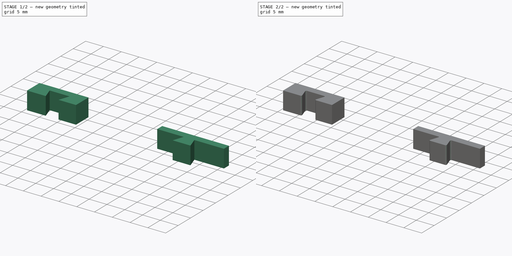
[diagram: build sequence overview — one tinted view per stage of 2, left to right]
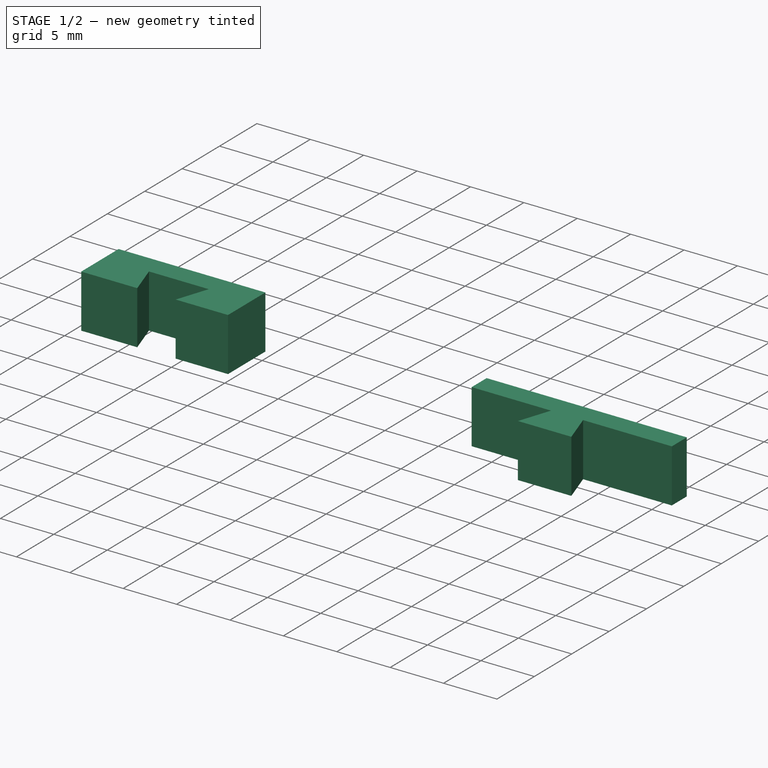
[diagram: stage 1 of 2 — iso view after this stage's code; geometry added in this stage tinted green]
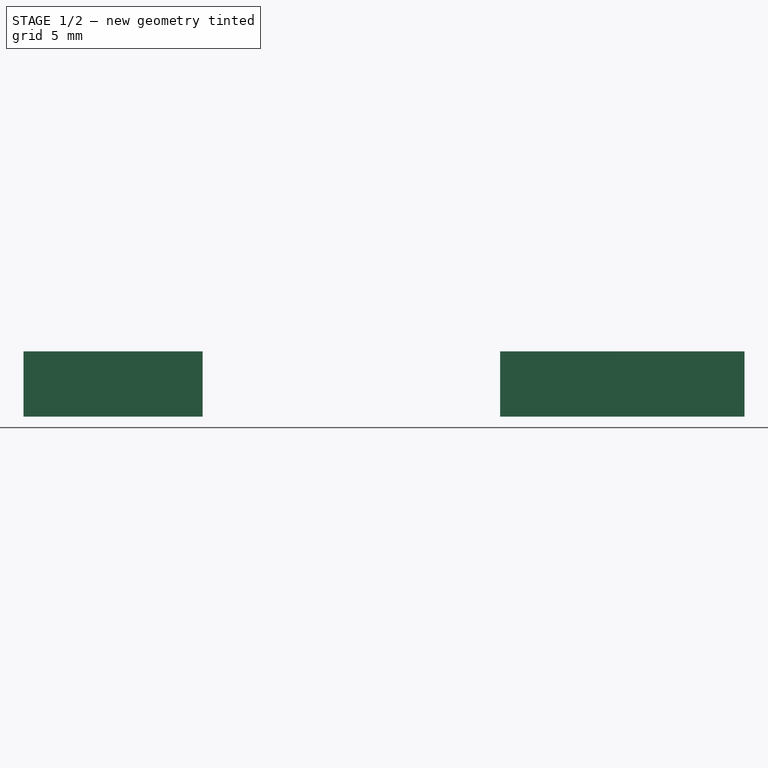
[diagram: stage 1 of 2 — front view after this stage's code; geometry added in this stage tinted green]
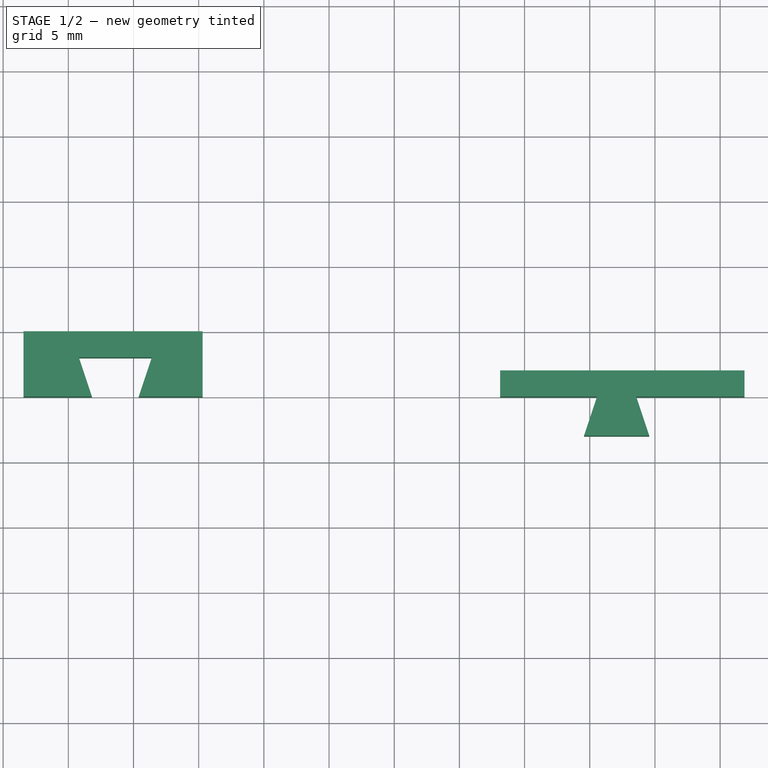
[diagram: stage 1 of 2 — top view after this stage's code; geometry added in this stage tinted green]
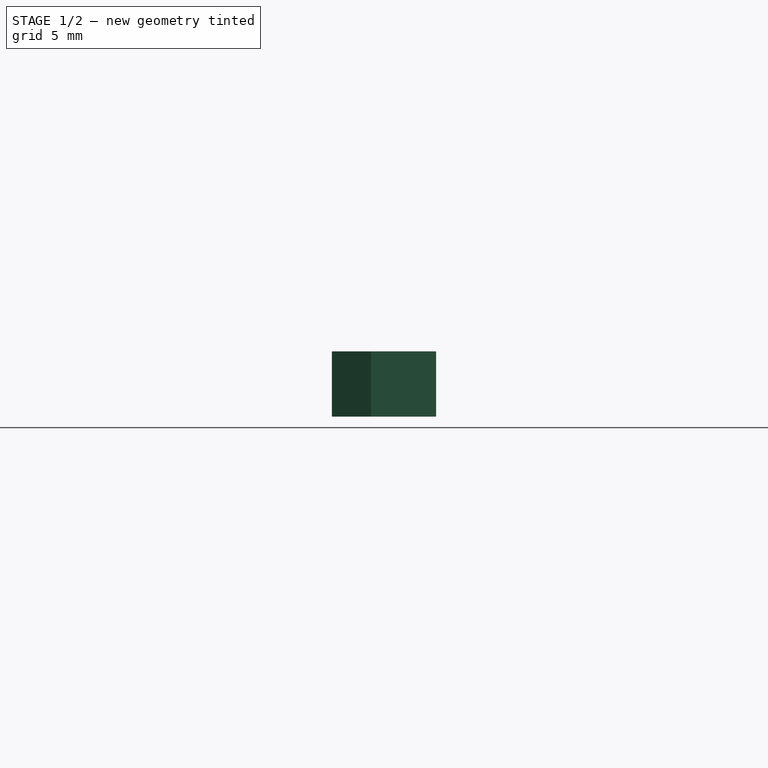
[diagram: stage 1 of 2 — right view after this stage's code; geometry added in this stage tinted green]
FCSTD DOCUMENT  (FreeCAD 0.15R4671 (Git))
Label: Encaixe
License: All rights reserved
LicenseURL: http://en.wikipedia.org/wiki/All_rights_reserved
objects: Sketcher::SketchObject×1, PartDesign::Pad×1, PartDesign::Fillet×1
note: 4 computed .brp shape members not serialized (recipe doc carries the construction recipe); baked Part::Feature solids carry a one-line shape summary decoded from their .brp

FEATURE [Sketcher::SketchObject] Sketch
  sketch-geometry (16):
    g0: LineSegment StartX=18.1239 StartY=2 StartZ=0 EndX=36.871 EndY=2 EndZ=0
    g1: LineSegment StartX=36.871 StartY=2 StartZ=0 EndX=36.871 EndY=0 EndZ=0
    g2: LineSegment StartX=36.871 StartY=0 StartZ=0 EndX=28.5596 EndY=0 EndZ=0
    g3: LineSegment StartX=28.5596 StartY=0 StartZ=0 EndX=29.5596 EndY=-3 EndZ=0
    g4: LineSegment StartX=29.5596 StartY=-3 StartZ=0 EndX=24.5596 EndY=-3 EndZ=0
    g5: LineSegment StartX=24.5596 StartY=-3 StartZ=0 EndX=25.5596 EndY=0 EndZ=0
    g6: LineSegment StartX=25.5596 StartY=0 StartZ=0 EndX=18.1239 EndY=0 EndZ=0
    g7: LineSegment StartX=18.1239 StartY=0 StartZ=0 EndX=18.1239 EndY=2 EndZ=0
    g8: LineSegment StartX=-18.4393 StartY=0 StartZ=0 EndX=-13.1937 EndY=0 EndZ=0
    g9: LineSegment StartX=-13.1937 StartY=0 StartZ=0 EndX=-14.1937 EndY=3 EndZ=0
    g10: LineSegment StartX=-14.1937 StartY=3 StartZ=0 EndX=-8.59369 EndY=3 EndZ=0
    g11: LineSegment StartX=-8.59369 StartY=3 StartZ=0 EndX=-9.59369 EndY=0 EndZ=0
    g12: LineSegment StartX=-9.59369 StartY=0 StartZ=0 EndX=-4.69409 EndY=0 EndZ=0
    g13: LineSegment StartX=-4.69409 StartY=0 StartZ=0 EndX=-4.69409 EndY=5 EndZ=0
    g14: LineSegment StartX=-4.69409 StartY=5 StartZ=0 EndX=-18.4393 EndY=5 EndZ=0
    g15: LineSegment StartX=-18.4393 StartY=5 StartZ=0 EndX=-18.4393 EndY=0 EndZ=0
  constraints (42):
    c: Horizontal(g0)
    c: Coincident(g0,g1)
    c: PointOnObject(g1,g-1)
    c: Vertical(g1)
    c: Coincident(g1,g2)
    c: PointOnObject(g2,g-1)
    c: Coincident(g2,g3)
    c: Coincident(g3,g4)
    c: Horizontal(g4)
    c: Coincident(g4,g5)
    c: PointOnObject(g5,g-1)
    c: Coincident(g5,g6)
    c: Horizontal(g6)
    c: Coincident(g6,g7)
    c: Coincident(g7,g0)
    c: Vertical(g7)
    c: Distance(g4) = 5
    c: DistanceY(g4,g5) = 3
    c: DistanceX(g5,g2) = 3
    c: DistanceX(g5,g4) = -1
    c: DistanceY(g1) = -2
    c: PointOnObject(g8,g-1)
    c: PointOnObject(g8,g-1)
    c: Coincident(g8,g9)
    c: Coincident(g9,g10)
    c: Horizontal(g10)
    c: Coincident(g10,g11)
    c: PointOnObject(g11,g-1)
    c: Coincident(g11,g12)
    c: PointOnObject(g12,g-1)
    c: Coincident(g12,g13)
    c: Vertical(g13)
    c: Coincident(g13,g14)
    c: Horizontal(g14)
    c: Coincident(g14,g15)
    c: Coincident(g15,g8)
    c: Vertical(g15)
    c: Distance(g13) = 5
    c: DistanceY(g8,g9) = 3
    c: Distance(g10) = 5.6
    c: DistanceX(g8,g11) = 3.6
    c: DistanceX(g9) = -1
FEATURE [PartDesign::Pad] Pad
  Length = 5
  Length2 = 100
  Sketch = -> Sketch
  Type = 0
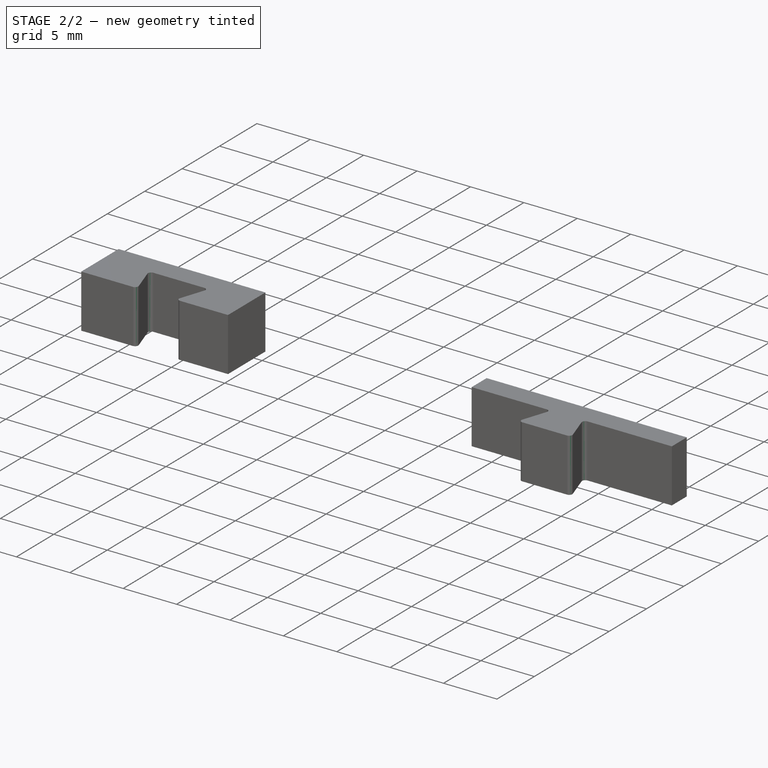
[diagram: stage 2 of 2 — iso view after this stage's code; geometry added in this stage tinted green]
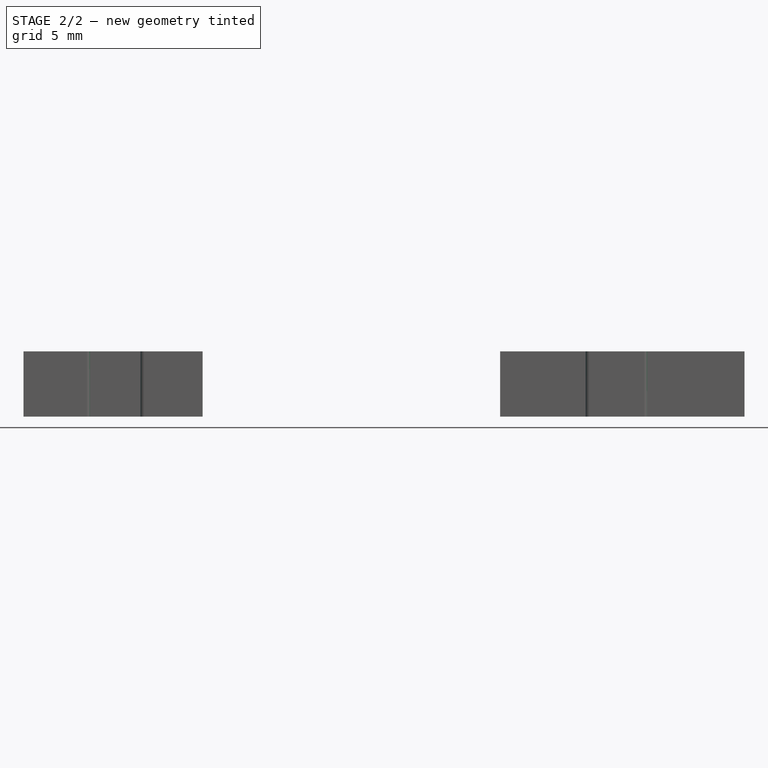
[diagram: stage 2 of 2 — front view after this stage's code; geometry added in this stage tinted green]
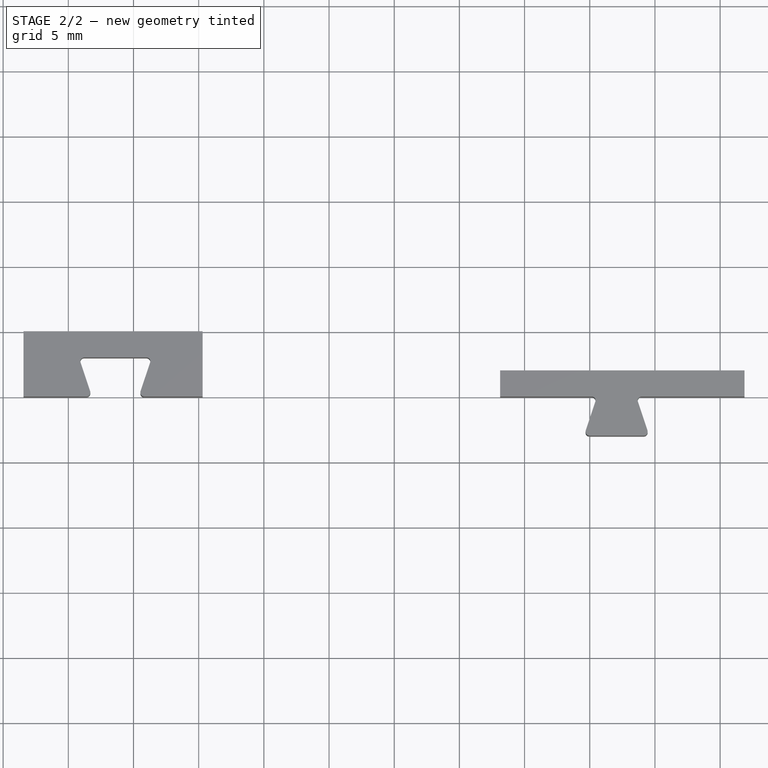
[diagram: stage 2 of 2 — top view after this stage's code; geometry added in this stage tinted green]
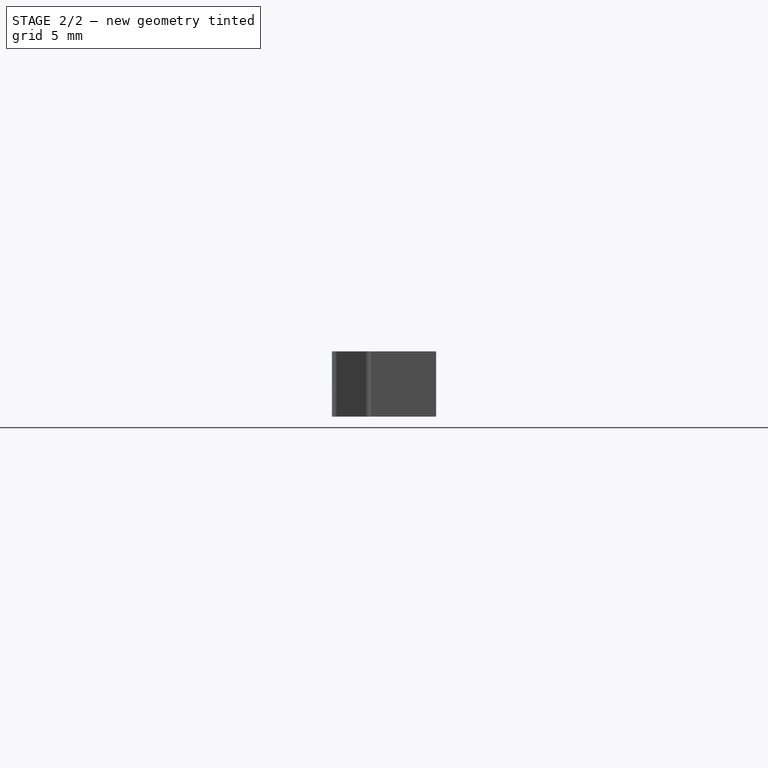
[diagram: stage 2 of 2 — right view after this stage's code; geometry added in this stage tinted green]
FEATURE [PartDesign::Fillet] Fillet
  Base = -> Pad [Edge26,Edge11,Edge29,Edge8,Edge32,Edge35,Edge17,Edge14]
  Radius = 0.3
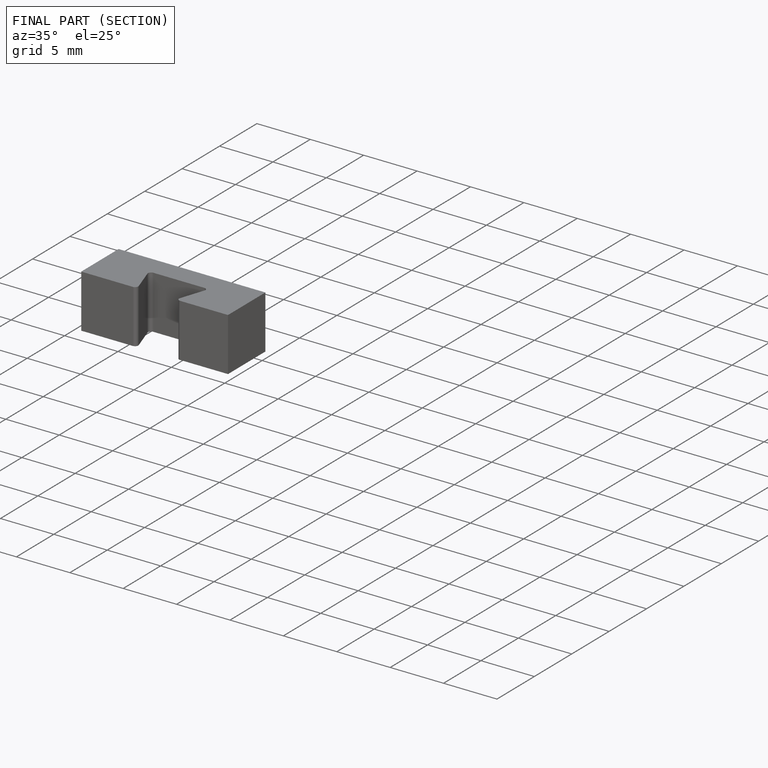
[diagram: finished part — half-section view (interior)]
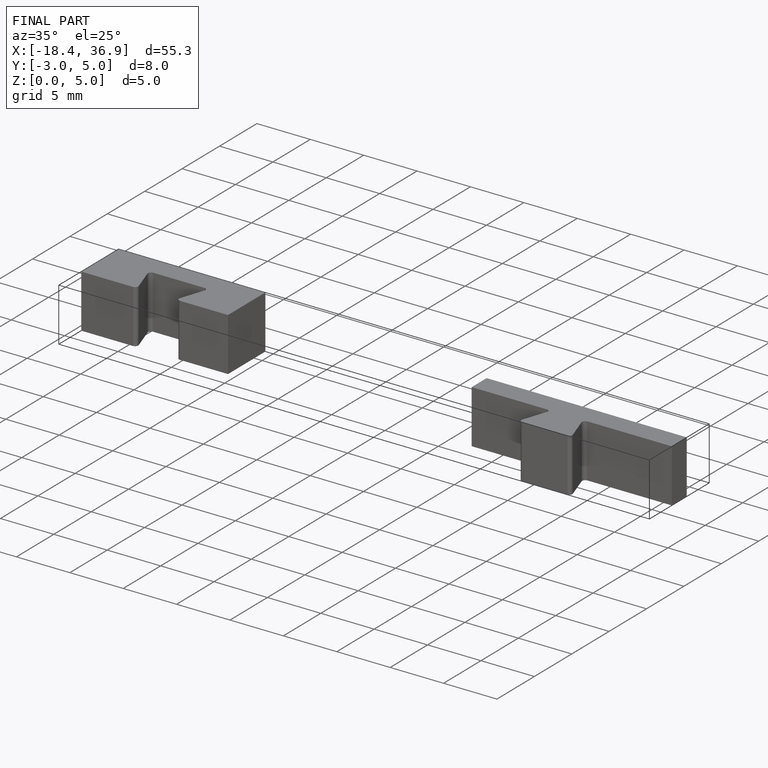
[diagram: finished part — iso view with bounding-box wireframe]
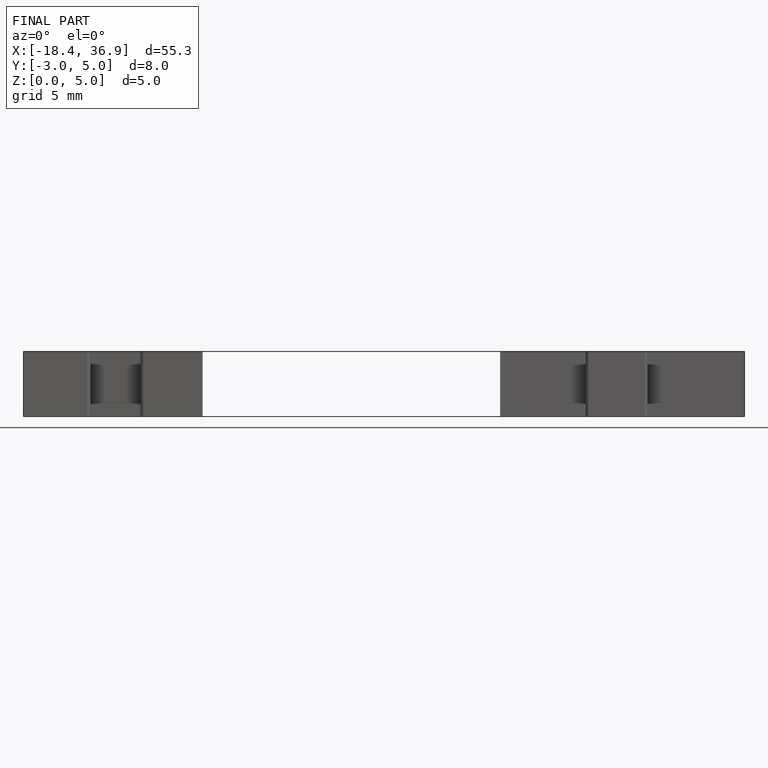
[diagram: finished part — front view with bounding-box wireframe]
